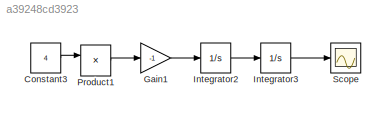
MODEL slx_a39248cd3923
KIND model
CONFIG AbsTol = auto
CONFIG EnableMultiTasking = off
CONFIG FixedStep = auto
CONFIG MaxStep = auto
CONFIG MinStep = auto
CONFIG RelTol = 1e-3
CONFIG SampleTimeConstraint = Unconstrained
CONFIG SolverName = ode45
CONFIG StartTime = 0.0
CONFIG StopTime = 10
BLOCK [Constant] Constant3
  Value = 4
BLOCK [Gain] Gain1
  Gain = -1
BLOCK [Integrator] Integrator2
BLOCK [Integrator] Integrator3
  InitialCondition = 1
BLOCK [Product] Product1
BLOCK [Scope] Scope
  Floating = off
  NumInputPorts = 1
LINE Constant3:1 -> Product1:1
LINE Gain1:1 -> Integrator2:1
LINE Integrator2:1 -> Integrator3:1
LINE Integrator3:1 -> Scope:1
LINE Product1:1 -> Gain1:1
